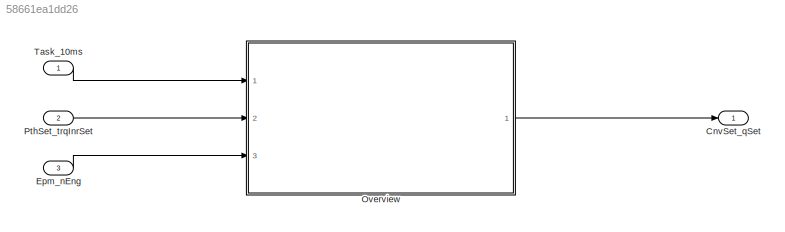
MODEL slx_58661ea1dd26
KIND model
CONFIG AbsTol = auto
CONFIG EnableMultiTasking = off
CONFIG FixedStep = auto
CONFIG MaxStep = auto
CONFIG MinStep = auto
CONFIG RelTol = 1e-3
CONFIG SampleTimeConstraint = Unconstrained
CONFIG Solver = VariableStepAuto
CONFIG SolverName = VariableStepAuto
CONFIG StartTime = 0.0
CONFIG StopTime = 10.0
BLOCK [Outport] CnvSet_qSet
  IconDisplay = Port number
BLOCK [Inport] Epm_nEng
  IconDisplay = Port number
  Port = 3
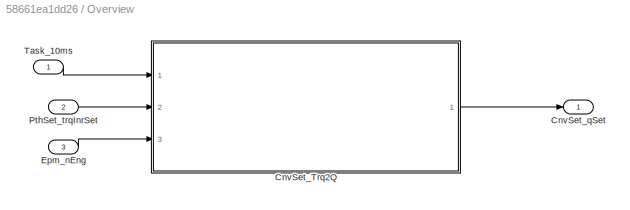
BLOCK [SubSystem] Overview
  Ports = [3, 1]
  RequestExecContextInheritance = off
BLOCK [ModelReference] Overview/CnvSet_Trq2Q
  ModelNameDialog = CnvSet_Trq2Q
  ModelReferenceVersion = 1.66
  Ports = [3, 1]
BLOCK [Outport] Overview/CnvSet_qSet
  IconDisplay = Port number
BLOCK [Inport] Overview/Epm_nEng
  IconDisplay = Port number
  Port = 3
BLOCK [Inport] Overview/PthSet_trqInrSet
  IconDisplay = Port number
  Port = 2
BLOCK [Inport] Overview/Task_10ms
  IconDisplay = Port number
BLOCK [Inport] PthSet_trqInrSet
  IconDisplay = Port number
  Port = 2
BLOCK [Inport] Task_10ms
  IconDisplay = Port number
  OutputFunctionCall = on
LINE Epm_nEng:1 -> Overview:3
LINE Overview/CnvSet_Trq2Q:1 -> Overview/CnvSet_qSet:1
LINE Overview/Epm_nEng:1 -> Overview/CnvSet_Trq2Q:3
LINE Overview/PthSet_trqInrSet:1 -> Overview/CnvSet_Trq2Q:2
LINE Overview/Task_10ms:1 -> Overview/CnvSet_Trq2Q:1
LINE Overview:1 -> CnvSet_qSet:1
LINE PthSet_trqInrSet:1 -> Overview:2
LINE Task_10ms:1 -> Overview:1
